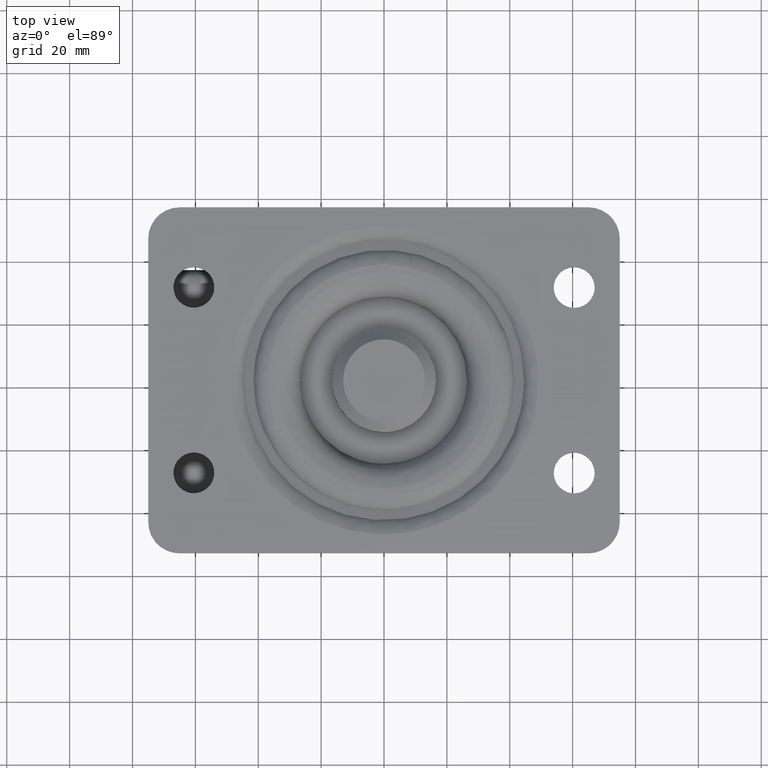
[diagram: clean part render]
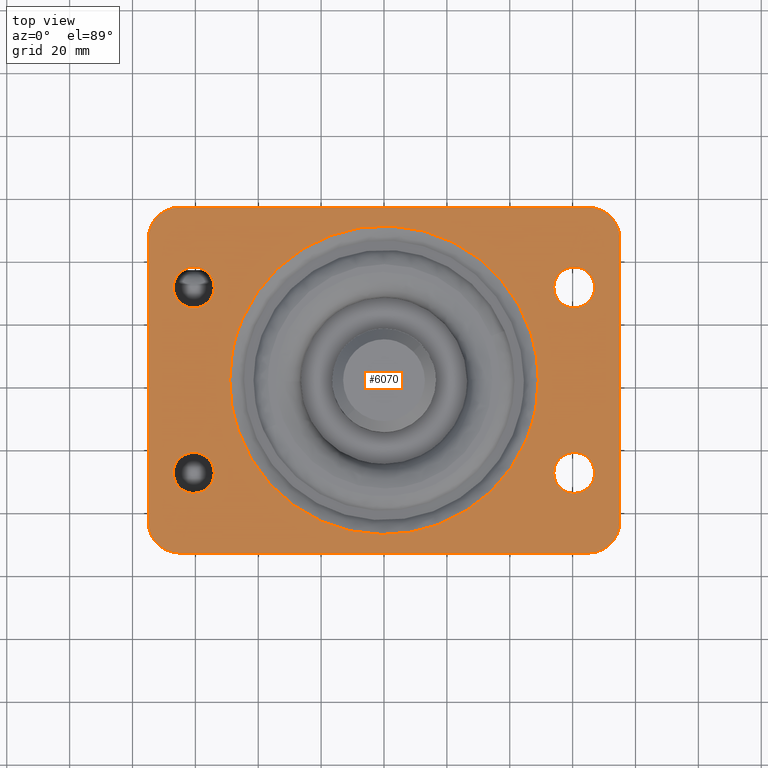
[diagram: same view with one face highlighted and labeled with its STEP entity id]
A machine part, top view. The second image highlights one B-rep face of the part: STEP entity #6070.
In plain terms, the highlighted face is a freeform B-spline surface patch.
Its self-contained STEP definition (entity closure, byte-faithful):
#3528=CARTESIAN_POINT('',(-65.214933006121370,25.025695852229020,-9.256630E-012));
#3529=VERTEX_POINT('',#3528);
#3530=CARTESIAN_POINT('',(-60.499997183516591,23.000000000000611,0.0));
#3531=VERTEX_POINT('',#3530);
#3532=CARTESIAN_POINT('',(-65.214933006121370,25.025695852229020,-9.256630E-012));
#3533=CARTESIAN_POINT('',(-64.798987766847318,24.587063081649330,-8.440023E-012));
#3534=CARTESIAN_POINT('',(-64.082386021706284,24.017365222752510,-7.033150E-012));
#3535=CARTESIAN_POINT('',(-62.850137666437618,23.402463593241091,-4.613930E-012));
#3536=CARTESIAN_POINT('',(-61.736403004759808,23.075768150316179,-2.427383E-012));
#3537=CARTESIAN_POINT('',(-60.884648617960472,22.999981815991511,-7.551697E-013));
#3538=CARTESIAN_POINT('',(-60.499997183516591,23.000000000000611,0.0));
#3539=B_SPLINE_CURVE_WITH_KNOTS('',3,(#3532,#3533,#3534,#3535,#3536,#3537,#3538),.UNSPECIFIED.,.F.,.U.,(4,1,1,1,4),(0.000000060887542,1.813386015012048,2.720040478702700,4.121328463187240,5.275295690579365),.UNSPECIFIED.);
#3540=EDGE_CURVE('',#3529,#3531,#3539,.T.);
#3542=CARTESIAN_POINT('',(-54.0,29.500000000000000,0.0));
#3543=VERTEX_POINT('',#3542);
#3544=CARTESIAN_POINT('',(-60.499997183516591,23.000000000000611,0.0));
#3545=CARTESIAN_POINT('',(-59.808631612501429,22.999576464509520,0.0));
#3546=CARTESIAN_POINT('',(-58.612385811927133,23.192797610327791,0.0));
#3547=CARTESIAN_POINT('',(-57.229036400870378,23.836764629444801,0.0));
#3548=CARTESIAN_POINT('',(-56.062134978378268,24.680098986911489,0.0));
#3549=CARTESIAN_POINT('',(-55.076966845389158,25.780478957107650,0.0));
#3550=CARTESIAN_POINT('',(-54.221787726439558,27.479528671122939,0.0));
#3551=CARTESIAN_POINT('',(-53.999470307614658,28.755446604226329,0.0));
#3552=CARTESIAN_POINT('',(-54.0,29.500000000000000,0.0));
#3553=B_SPLINE_CURVE_WITH_KNOTS('',3,(#3544,#3545,#3546,#3547,#3548,#3549,#3550,#3551,#3552),.UNSPECIFIED.,.F.,.U.,(4,1,1,1,1,1,4),(0.000000214756135,2.073952935373928,3.589546317298107,4.546771423245969,6.381366549985041,7.976754844727179,10.210238601278590),.UNSPECIFIED.);
#3554=EDGE_CURVE('',#3531,#3543,#3553,.T.);
#3556=CARTESIAN_POINT('',(-55.785066993878630,33.974304147770980,-9.256630E-012));
#3557=VERTEX_POINT('',#3556);
#3558=CARTESIAN_POINT('',(-54.0,29.500000000000000,0.0));
#3559=CARTESIAN_POINT('',(-53.999958928572859,29.911244720360180,-8.508005E-013));
#3560=CARTESIAN_POINT('',(-54.080777643549268,30.759391563772599,-2.605483E-012));
#3561=CARTESIAN_POINT('',(-54.554305979664420,32.343549784262677,-5.882856E-012));
#3562=CARTESIAN_POINT('',(-55.236022262954563,33.396713058263060,-8.061685E-012));
#3563=CARTESIAN_POINT('',(-55.785066993878630,33.974304147770980,-9.256630E-012));
#3564=B_SPLINE_CURVE_WITH_KNOTS('',3,(#3558,#3559,#3560,#3561,#3562,#3563),.UNSPECIFIED.,.F.,.U.,(4,1,1,4),(0.000000049310175,1.233736780940647,2.544550511542192,4.934946975837874),.UNSPECIFIED.);
#3565=EDGE_CURVE('',#3543,#3557,#3564,.T.);
#3637=CARTESIAN_POINT('',(-67.0,29.500000000000000,0.0));
#3638=VERTEX_POINT('',#3637);
#3639=CARTESIAN_POINT('',(-67.0,29.500000000000000,0.0));
#3640=CARTESIAN_POINT('',(-67.000045679717047,29.088754565695801,-8.508020E-013));
#3641=CARTESIAN_POINT('',(-66.919217095557769,28.240608896704860,-2.605482E-012));
#3642=CARTESIAN_POINT('',(-66.445697831384024,26.656450463665379,-5.882856E-012));
#3643=CARTESIAN_POINT('',(-65.763976478216250,25.603286337902730,-8.061686E-012));
#3644=CARTESIAN_POINT('',(-65.214933006121370,25.025695852229020,-9.256630E-012));
#3645=B_SPLINE_CURVE_WITH_KNOTS('',3,(#3639,#3640,#3641,#3642,#3643,#3644),.UNSPECIFIED.,.F.,.U.,(4,1,1,4),(0.000000049307932,1.233736780938916,2.544550511541166,4.934946975837892),.UNSPECIFIED.);
#3646=EDGE_CURVE('',#3638,#3529,#3645,.T.);
#3686=CARTESIAN_POINT('',(-60.500002816483402,35.999999999999389,0.0));
#3687=VERTEX_POINT('',#3686);
#3688=CARTESIAN_POINT('',(-55.785066993878630,33.974304147770980,-9.256630E-012));
#3689=CARTESIAN_POINT('',(-56.201000429314902,34.412939424540269,-8.440046E-012));
#3690=CARTESIAN_POINT('',(-57.091310793155422,35.120854946154743,-6.692139E-012));
#3691=CARTESIAN_POINT('',(-58.714239844482549,35.830342164519408,-3.505912E-012));
#3692=CARTESIAN_POINT('',(-59.868029809650942,36.000286824828962,-1.240726E-012));
#3693=CARTESIAN_POINT('',(-60.500002816483402,35.999999999999389,0.0));
#3694=B_SPLINE_CURVE_WITH_KNOTS('',3,(#3688,#3689,#3690,#3691,#3692,#3693),.UNSPECIFIED.,.F.,.U.,(4,1,1,4),(0.000000060879676,1.813386015008428,3.379471489652139,5.275295690579370),.UNSPECIFIED.);
#3695=EDGE_CURVE('',#3557,#3687,#3694,.T.);
#3697=CARTESIAN_POINT('',(-60.500002816483402,35.999999999999389,0.0));
#3698=CARTESIAN_POINT('',(-61.058376756352573,36.000150355949387,0.0));
#3699=CARTESIAN_POINT('',(-62.068691634116789,35.868998078532499,0.0));
#3700=CARTESIAN_POINT('',(-63.443770788600723,35.348240867511571,0.0));
#3701=CARTESIAN_POINT('',(-64.523661005261474,34.655039535979583,0.0));
#3702=CARTESIAN_POINT('',(-65.432079776155987,33.790143402994389,0.0));
#3703=CARTESIAN_POINT('',(-66.058092852496117,32.924020750144457,0.0));
#3704=CARTESIAN_POINT('',(-66.597133699605493,31.853251349144969,0.0));
#3705=CARTESIAN_POINT('',(-66.924512797990829,30.749695687567961,0.0));
#3706=CARTESIAN_POINT('',(-67.000008721854186,29.872233221505660,0.0));
#3707=CARTESIAN_POINT('',(-67.0,29.500000000000000,0.0));
#3708=B_SPLINE_CURVE_WITH_KNOTS('',3,(#3697,#3698,#3699,#3700,#3701,#3702,#3703,#3704,#3705,#3706,#3707),.UNSPECIFIED.,.F.,.U.,(4,1,1,1,1,1,1,1,4),(0.000000214806230,1.675103373865545,3.031169577022228,4.387254582914811,5.503944866911466,6.780219901310039,7.577910567241601,9.093518363874459,10.210238601278380),.UNSPECIFIED.);
#3709=EDGE_CURVE('',#3687,#3638,#3708,.T.);
#3732=CARTESIAN_POINT('',(-65.214933006121356,-33.974304147770980,-9.256644E-012));
#3733=VERTEX_POINT('',#3732);
#3734=CARTESIAN_POINT('',(-60.499997183516591,-35.999999999999403,0.0));
#3735=VERTEX_POINT('',#3734);
#3736=CARTESIAN_POINT('',(-65.214933006121356,-33.974304147770980,-9.256644E-012));
#3737=CARTESIAN_POINT('',(-64.874568315949617,-34.333117994694831,-8.588420E-012));
#3738=CARTESIAN_POINT('',(-64.153788166633973,-34.936884794937889,-7.173341E-012));
#3739=CARTESIAN_POINT('',(-63.003599113412392,-35.538435920651949,-4.915222E-012));
#3740=CARTESIAN_POINT('',(-61.791314648492779,-35.910756592436712,-2.535192E-012));
#3741=CARTESIAN_POINT('',(-60.967083881309300,-36.000076235908139,-9.170127E-013));
#3742=CARTESIAN_POINT('',(-60.499997183516591,-35.999999999999403,0.0));
#3743=B_SPLINE_CURVE_WITH_KNOTS('',3,(#3736,#3737,#3738,#3739,#3740,#3741,#3742),.UNSPECIFIED.,.F.,.U.,(4,1,1,1,4),(0.000000060886622,1.483680648341079,2.802480864486630,3.874044127274264,5.275295690579337),.UNSPECIFIED.);
#3744=EDGE_CURVE('',#3733,#3735,#3743,.T.);
#3746=CARTESIAN_POINT('',(-54.0,-29.500000000000000,0.0));
#3747=VERTEX_POINT('',#3746);
#3748=CARTESIAN_POINT('',(-60.499997183516591,-35.999999999999403,0.0));
#3749=CARTESIAN_POINT('',(-59.702203654264608,-36.000749376513703,0.0));
#3750=CARTESIAN_POINT('',(-58.453077044249852,-35.766921717668019,0.0));
#3751=CARTESIAN_POINT('',(-57.048628630915793,-35.048907788914804,0.0));
#3752=CARTESIAN_POINT('',(-56.030112461482481,-34.274072695274100,0.0));
#3753=CARTESIAN_POINT('',(-55.173069512090997,-33.316706567218390,0.0));
#3754=CARTESIAN_POINT('',(-54.456132613106782,-32.032933674351661,0.0));
#3755=CARTESIAN_POINT('',(-54.075495372875757,-30.749682840480119,0.0));
#3756=CARTESIAN_POINT('',(-53.999989729297987,-29.872235501302921,0.0));
#3757=CARTESIAN_POINT('',(-54.0,-29.500000000000000,0.0));
#3758=B_SPLINE_CURVE_WITH_KNOTS('',3,(#3748,#3749,#3750,#3751,#3752,#3753,#3754,#3755,#3756,#3757),.UNSPECIFIED.,.F.,.U.,(4,1,1,1,1,1,1,4),(0.000000214770303,2.393021276081775,3.749081627747875,4.706292911014352,6.221839639303230,7.577910567233488,9.093518363870889,10.210238601278389),.UNSPECIFIED.);
#3759=EDGE_CURVE('',#3735,#3747,#3758,.T.);
#3761=CARTESIAN_POINT('',(-55.785066993878630,-25.025695852229020,-9.256644E-012));
#3762=VERTEX_POINT('',#3761);
#3763=CARTESIAN_POINT('',(-54.0,-29.500000000000000,0.0));
#3764=CARTESIAN_POINT('',(-53.999793996208382,-28.908809776998680,-1.223081E-012));
#3765=CARTESIAN_POINT('',(-54.127154656044247,-27.983654075862251,-3.137085E-012));
#3766=CARTESIAN_POINT('',(-54.692797121177122,-26.433728172377169,-6.343643E-012));
#3767=CARTESIAN_POINT('',(-55.289239249665577,-25.547442923245310,-8.177230E-012));
#3768=CARTESIAN_POINT('',(-55.785066993878630,-25.025695852229020,-9.256644E-012));
#3769=B_SPLINE_CURVE_WITH_KNOTS('',3,(#3763,#3764,#3765,#3766,#3767,#3768),.UNSPECIFIED.,.F.,.U.,(4,1,1,4),(0.000000049308217,1.773500383713782,2.775888426982784,4.934946975837912),.UNSPECIFIED.);
#3770=EDGE_CURVE('',#3747,#3762,#3769,.T.);
#3843=CARTESIAN_POINT('',(-67.0,-29.500000000000000,0.0));
#3844=VERTEX_POINT('',#3843);
#3845=CARTESIAN_POINT('',(-67.0,-29.500000000000000,0.0));
#3846=CARTESIAN_POINT('',(-67.000672760634785,-30.271199484763759,-1.595493E-012));
#3847=CARTESIAN_POINT('',(-66.791626826169960,-31.427332342342378,-3.987353E-012));
#3848=CARTESIAN_POINT('',(-66.080821080387892,-32.918074150283481,-7.071467E-012));
#3849=CARTESIAN_POINT('',(-65.551159773948413,-33.620121916693492,-8.523896E-012));
#3850=CARTESIAN_POINT('',(-65.214933006121356,-33.974304147770980,-9.256644E-012));
#3851=B_SPLINE_CURVE_WITH_KNOTS('',3,(#3845,#3846,#3847,#3848,#3849,#3850),.UNSPECIFIED.,.F.,.U.,(4,1,1,4),(0.000000049300406,2.313269577827303,3.469879384539595,4.934946975837923),.UNSPECIFIED.);
#3852=EDGE_CURVE('',#3844,#3733,#3851,.T.);
#3890=CARTESIAN_POINT('',(-60.500002816483402,-23.000000000000611,0.0));
#3891=VERTEX_POINT('',#3890);
#3892=CARTESIAN_POINT('',(-55.785066993878630,-25.025695852229020,-9.256644E-012));
#3893=CARTESIAN_POINT('',(-56.106535003669222,-24.686834912829760,-8.625519E-012));
#3894=CARTESIAN_POINT('',(-56.801866791366727,-24.096773521224730,-7.260402E-012));
#3895=CARTESIAN_POINT('',(-57.822794802940770,-23.546245684277370,-5.256055E-012));
#3896=CARTESIAN_POINT('',(-59.043910459461628,-23.119717921388659,-2.858688E-012));
#3897=CARTESIAN_POINT('',(-59.895507257361892,-22.999744376712581,-1.186782E-012));
#3898=CARTESIAN_POINT('',(-60.500002816483402,-23.000000000000611,0.0));
#3899=B_SPLINE_CURVE_WITH_KNOTS('',3,(#3892,#3893,#3894,#3895,#3896,#3897,#3898),.UNSPECIFIED.,.F.,.U.,(4,1,1,1,4),(0.000000060885536,1.401251624174429,2.720040478702725,3.461909736473141,5.275295690579346),.UNSPECIFIED.);
#3900=EDGE_CURVE('',#3762,#3891,#3899,.T.);
#3902=CARTESIAN_POINT('',(-60.500002816483402,-23.000000000000611,0.0));
#3903=CARTESIAN_POINT('',(-61.191368490933513,-22.999601613722739,0.0));
#3904=CARTESIAN_POINT('',(-62.334424859873167,-23.184226891892560,0.0));
#3905=CARTESIAN_POINT('',(-63.943153279153712,-23.909087888294749,0.0));
#3906=CARTESIAN_POINT('',(-65.144074846542878,-24.858153419576919,0.0));
#3907=CARTESIAN_POINT('',(-66.074058210406136,-26.065344013287021,0.0));
#3908=CARTESIAN_POINT('',(-66.792120528152765,-27.559307012993759,0.0));
#3909=CARTESIAN_POINT('',(-67.000486703484938,-28.755435914834649,0.0));
#3910=CARTESIAN_POINT('',(-67.0,-29.500000000000000,0.0));
#3911=B_SPLINE_CURVE_WITH_KNOTS('',3,(#3902,#3903,#3904,#3905,#3906,#3907,#3908,#3909,#3910),.UNSPECIFIED.,.F.,.U.,(4,1,1,1,1,1,4),(0.000000214811307,2.073952935416530,3.430020038061564,5.264615511083531,6.620694273557589,7.976754844739224,10.210238601278370),.UNSPECIFIED.);
#3912=EDGE_CURVE('',#3891,#3844,#3911,.T.);
#3935=CARTESIAN_POINT('',(55.785066993878630,-33.974304147770980,-9.256630E-012));
#3936=VERTEX_POINT('',#3935);
#3937=CARTESIAN_POINT('',(60.500002816483402,-35.999999999999389,0.0));
#3938=VERTEX_POINT('',#3937);
#3939=CARTESIAN_POINT('',(55.785066993878630,-33.974304147770980,-9.256630E-012));
#3940=CARTESIAN_POINT('',(56.219898159832489,-34.432898755439581,-8.402945E-012));
#3941=CARTESIAN_POINT('',(57.137346703339063,-35.152885319939173,-6.601758E-012));
#3942=CARTESIAN_POINT('',(58.769171645991783,-35.841739373991658,-3.398067E-012));
#3943=CARTESIAN_POINT('',(59.895522099217217,-36.000194481392427,-1.186751E-012));
#3944=CARTESIAN_POINT('',(60.500002816483402,-35.999999999999389,0.0));
#3945=B_SPLINE_CURVE_WITH_KNOTS('',3,(#3939,#3940,#3941,#3942,#3943,#3944),.UNSPECIFIED.,.F.,.U.,(4,1,1,4),(0.000000060882591,1.895824261736556,3.461909736472969,5.275295690579372),.UNSPECIFIED.);
#3946=EDGE_CURVE('',#3936,#3938,#3945,.T.);
#3948=CARTESIAN_POINT('',(67.0,-29.500000000000000,0.0));
#3949=VERTEX_POINT('',#3948);
#3950=CARTESIAN_POINT('',(60.500002816483402,-35.999999999999389,0.0));
#3951=CARTESIAN_POINT('',(60.925410490539448,-36.000024183923287,0.0));
#3952=CARTESIAN_POINT('',(61.935832327112813,-35.900601644085093,0.0));
#3953=CARTESIAN_POINT('',(63.331309787752780,-35.420563325410001,0.0));
#3954=CARTESIAN_POINT('',(64.613651498831118,-34.597292504549607,0.0));
#3955=CARTESIAN_POINT('',(65.692019443904599,-33.519159854368283,0.0));
#3956=CARTESIAN_POINT('',(66.450644599490218,-32.253354001419673,0.0));
#3957=CARTESIAN_POINT('',(66.902641727952414,-30.855993467874150,0.0));
#3958=CARTESIAN_POINT('',(67.000080108327822,-29.978595580998689,0.0));
#3959=CARTESIAN_POINT('',(67.0,-29.500000000000000,0.0));
#3960=B_SPLINE_CURVE_WITH_KNOTS('',3,(#3950,#3951,#3952,#3953,#3954,#3955,#3956,#3957,#3958,#3959),.UNSPECIFIED.,.F.,.U.,(4,1,1,1,1,1,1,4),(0.000000214823888,1.276250073671632,3.031169577031194,4.387254582920274,5.822984863437279,7.577910567243150,8.774456107231579,10.210238601278361),.UNSPECIFIED.);
#3961=EDGE_CURVE('',#3938,#3949,#3960,.T.);
#3963=CARTESIAN_POINT('',(65.214933006121370,-25.025695852229010,-9.256630E-012));
#3964=VERTEX_POINT('',#3963);
#3965=CARTESIAN_POINT('',(67.0,-29.500000000000000,0.0));
#3966=CARTESIAN_POINT('',(67.000092845111340,-29.011638611429490,-1.010343E-012));
#3967=CARTESIAN_POINT('',(66.895227091654789,-28.086395149739278,-2.924526E-012));
#3968=CARTESIAN_POINT('',(66.365448459672464,-26.520189541980269,-6.164758E-012));
#3969=CARTESIAN_POINT('',(65.710749078563580,-25.547442719559271,-8.177218E-012));
#3970=CARTESIAN_POINT('',(65.214933006121370,-25.025695852229010,-9.256630E-012));
#3971=B_SPLINE_CURVE_WITH_KNOTS('',3,(#3965,#3966,#3967,#3968,#3969,#3970),.UNSPECIFIED.,.F.,.U.,(4,1,1,4),(0.000000049306982,1.465067640670358,2.775888426983252,4.934946975837899),.UNSPECIFIED.);
#3972=EDGE_CURVE('',#3949,#3964,#3971,.T.);
#4044=CARTESIAN_POINT('',(54.0,-29.500000000000000,0.0));
#4045=VERTEX_POINT('',#4044);
#4046=CARTESIAN_POINT('',(54.0,-29.500000000000000,0.0));
#4047=CARTESIAN_POINT('',(53.999958928572859,-29.911244720360180,-8.508005E-013));
#4048=CARTESIAN_POINT('',(54.080777643549268,-30.759391563772599,-2.605483E-012));
#4049=CARTESIAN_POINT('',(54.554305979664420,-32.343549784262677,-5.882856E-012));
#4050=CARTESIAN_POINT('',(55.236022262954563,-33.396713058263060,-8.061685E-012));
#4051=CARTESIAN_POINT('',(55.785066993878630,-33.974304147770980,-9.256630E-012));
#4052=B_SPLINE_CURVE_WITH_KNOTS('',3,(#4046,#4047,#4048,#4049,#4050,#4051),.UNSPECIFIED.,.F.,.U.,(4,1,1,4),(0.000000049310175,1.233736780940647,2.544550511542192,4.934946975837874),.UNSPECIFIED.);
#4053=EDGE_CURVE('',#4045,#3936,#4052,.T.);
#4092=CARTESIAN_POINT('',(60.499997183516619,-23.000000000000611,0.0));
#4093=VERTEX_POINT('',#4092);
#4094=CARTESIAN_POINT('',(65.214933006121370,-25.025695852229010,-9.256630E-012));
#4095=CARTESIAN_POINT('',(64.685722430140430,-24.467177694514451,-8.217654E-012));
#4096=CARTESIAN_POINT('',(63.740885760816163,-23.773583216056970,-6.362697E-012));
#4097=CARTESIAN_POINT('',(62.093425624836513,-23.139057515804041,-3.128310E-012));
#4098=CARTESIAN_POINT('',(61.104484098778393,-22.999755049016059,-1.186763E-012));
#4099=CARTESIAN_POINT('',(60.499997183516619,-23.000000000000611,0.0));
#4100=B_SPLINE_CURVE_WITH_KNOTS('',3,(#4094,#4095,#4096,#4097,#4098,#4099),.UNSPECIFIED.,.F.,.U.,(4,1,1,4),(0.000000060884381,2.307968320717590,3.461909736473106,5.275295690579344),.UNSPECIFIED.);
#4101=EDGE_CURVE('',#3964,#4093,#4100,.T.);
#4103=CARTESIAN_POINT('',(60.499997183516619,-23.000000000000611,0.0));
#4104=CARTESIAN_POINT('',(59.941618022612992,-22.999854021751378,0.0));
#4105=CARTESIAN_POINT('',(59.037681235681397,-23.117232388918531,0.0));
#4106=CARTESIAN_POINT('',(57.653325364977782,-23.602948749693500,0.0));
#4107=CARTESIAN_POINT('',(56.416106883241461,-24.354777397877811,0.0));
#4108=CARTESIAN_POINT('',(55.218628643486021,-25.581928026183210,0.0));
#4109=CARTESIAN_POINT('',(54.262818743295412,-27.293510577959921,0.0));
#4110=CARTESIAN_POINT('',(53.999282904027730,-28.702238290381722,0.0));
#4111=CARTESIAN_POINT('',(54.0,-29.500000000000000,0.0));
#4112=B_SPLINE_CURVE_WITH_KNOTS('',3,(#4103,#4104,#4105,#4106,#4107,#4108,#4109,#4110,#4111),.UNSPECIFIED.,.F.,.U.,(4,1,1,1,1,1,4),(0.000000214749507,1.675103373817194,2.712099067918730,4.387254582882074,5.982514839087045,7.817217944726681,10.210238601278609),.UNSPECIFIED.);
#4113=EDGE_CURVE('',#4093,#4045,#4112,.T.);
#4136=CARTESIAN_POINT('',(55.785066993878637,25.025695852229010,-9.256630E-012));
#4137=VERTEX_POINT('',#4136);
#4138=CARTESIAN_POINT('',(60.500002816483402,23.000000000000611,0.0));
#4139=VERTEX_POINT('',#4138);
#4140=CARTESIAN_POINT('',(55.785066993878637,25.025695852229010,-9.256630E-012));
#4141=CARTESIAN_POINT('',(56.163223747855596,24.626980229866259,-8.514212E-012));
#4142=CARTESIAN_POINT('',(56.957131537604717,23.979042251489261,-6.955567E-012));
#4143=CARTESIAN_POINT('',(58.549555107637786,23.209272463522741,-3.829230E-012));
#4144=CARTESIAN_POINT('',(59.758097254646337,22.999517176191070,-1.456551E-012));
#4145=CARTESIAN_POINT('',(60.500002816483402,23.000000000000611,0.0));
#4146=B_SPLINE_CURVE_WITH_KNOTS('',3,(#4140,#4141,#4142,#4143,#4144,#4145),.UNSPECIFIED.,.F.,.U.,(4,1,1,4),(0.000000060886295,1.648533886200621,3.049778223737139,5.275295690579361),.UNSPECIFIED.);
#4147=EDGE_CURVE('',#4137,#4139,#4146,.T.);
#4149=CARTESIAN_POINT('',(67.0,29.500000000000000,0.0));
#4150=VERTEX_POINT('',#4149);
#4151=CARTESIAN_POINT('',(60.500002816483402,23.000000000000611,0.0));
#4152=CARTESIAN_POINT('',(61.244583117417207,22.999444943007418,0.0));
#4153=CARTESIAN_POINT('',(62.334355821464143,23.189410344445150,0.0));
#4154=CARTESIAN_POINT('',(63.623201396998297,23.770428440802881,0.0));
#4155=CARTESIAN_POINT('',(64.628946821359378,24.424558198634109,0.0));
#4156=CARTESIAN_POINT('',(65.568457935775058,25.341306111498639,0.0));
#4157=CARTESIAN_POINT('',(66.304877750254306,26.488748359290479,0.0));
#4158=CARTESIAN_POINT('',(66.849961882241629,27.851632537626418,0.0));
#4159=CARTESIAN_POINT('',(67.000263812797868,28.861829031734370,0.0));
#4160=CARTESIAN_POINT('',(67.0,29.500000000000000,0.0));
#4161=B_SPLINE_CURVE_WITH_KNOTS('',3,(#4151,#4152,#4153,#4154,#4155,#4156,#4157,#4158,#4159,#4160),.UNSPECIFIED.,.F.,.U.,(4,1,1,1,1,1,1,4),(0.000000214804929,2.233484872761211,3.270486711174886,4.227724074456822,5.822984863435053,7.179070366667428,8.295824214536898,10.210238601278370),.UNSPECIFIED.);
#4162=EDGE_CURVE('',#4139,#4150,#4161,.T.);
#4164=CARTESIAN_POINT('',(65.214933006121370,33.974304147770980,-9.256103E-012));
#4165=VERTEX_POINT('',#4164);
#4166=CARTESIAN_POINT('',(67.0,29.500000000000000,0.0));
#4167=CARTESIAN_POINT('',(67.000628769098938,30.271189901734321,-1.595379E-012));
#4168=CARTESIAN_POINT('',(66.791670098127412,31.427343759360578,-3.987143E-012));
#4169=CARTESIAN_POINT('',(66.080799471524330,32.918065800310892,-7.071037E-012));
#4170=CARTESIAN_POINT('',(65.551168726018091,33.620127513442817,-8.523409E-012));
#4171=CARTESIAN_POINT('',(65.214933006121370,33.974304147770980,-9.256103E-012));
#4172=B_SPLINE_CURVE_WITH_KNOTS('',3,(#4166,#4167,#4168,#4169,#4170,#4171),.UNSPECIFIED.,.F.,.U.,(4,1,1,4),(0.000000049309173,2.313269577829438,3.469879384539226,4.934946975837912),.UNSPECIFIED.);
#4173=EDGE_CURVE('',#4150,#4165,#4172,.T.);
#4246=CARTESIAN_POINT('',(54.0,29.500000000000000,0.0));
#4247=VERTEX_POINT('',#4246);
#4248=CARTESIAN_POINT('',(54.0,29.500000000000000,0.0));
#4249=CARTESIAN_POINT('',(53.999511055651837,28.780232325422791,-1.489086E-012));
#4250=CARTESIAN_POINT('',(54.163913949914011,27.803872453914980,-3.509021E-012));
#4251=CARTESIAN_POINT('',(54.792721428399872,26.280633666896090,-6.660362E-012));
#4252=CARTESIAN_POINT('',(55.324735983244118,25.510226777337000,-8.254212E-012));
#4253=CARTESIAN_POINT('',(55.785066993878637,25.025695852229010,-9.256630E-012));
#4254=B_SPLINE_CURVE_WITH_KNOTS('',3,(#4248,#4249,#4250,#4251,#4252,#4253),.UNSPECIFIED.,.F.,.U.,(4,1,1,4),(0.000000049311816,2.159058598247204,2.930104702001849,4.934946975837865),.UNSPECIFIED.);
#4255=EDGE_CURVE('',#4247,#4137,#4254,.T.);
#4294=CARTESIAN_POINT('',(60.499997183516612,35.999999999999389,0.0));
#4295=VERTEX_POINT('',#4294);
#4296=CARTESIAN_POINT('',(65.214933006121370,33.974304147770980,-9.256103E-012));
#4297=CARTESIAN_POINT('',(64.685753995051968,34.532824968373937,-8.217248E-012));
#4298=CARTESIAN_POINT('',(63.628386232510913,35.309075079276752,-6.141482E-012));
#4299=CARTESIAN_POINT('',(61.956160321153646,35.892965412695332,-2.858660E-012));
#4300=CARTESIAN_POINT('',(60.967080477410491,36.000063879135539,-9.169524E-013));
#4301=CARTESIAN_POINT('',(60.499997183516612,35.999999999999389,0.0));
#4302=B_SPLINE_CURVE_WITH_KNOTS('',3,(#4296,#4297,#4298,#4299,#4300,#4301),.UNSPECIFIED.,.F.,.U.,(4,1,1,4),(0.000000060883932,2.307968320717872,3.874044127273340,5.275295690579343),.UNSPECIFIED.);
#4303=EDGE_CURVE('',#4165,#4295,#4302,.T.);
#4305=CARTESIAN_POINT('',(60.499997183516612,35.999999999999389,0.0));
#4306=CARTESIAN_POINT('',(60.021404036134570,36.000066117664687,0.0));
#4307=CARTESIAN_POINT('',(59.011032603082377,35.887959201476427,0.0));
#4308=CARTESIAN_POINT('',(57.699389784684421,35.418718469390143,0.0));
#4309=CARTESIAN_POINT('',(56.677009397370803,34.788556341402582,0.0));
#4310=CARTESIAN_POINT('',(55.865591494394003,34.097259863320133,0.0));
#4311=CARTESIAN_POINT('',(55.068932252595943,33.162367853254743,0.0));
#4312=CARTESIAN_POINT('',(54.247985153021453,31.626680221483870,0.0));
#4313=CARTESIAN_POINT('',(53.999254429007777,30.297785875713810,0.0));
#4314=CARTESIAN_POINT('',(54.0,29.500000000000000,0.0));
#4315=B_SPLINE_CURVE_WITH_KNOTS('',3,(#4305,#4306,#4307,#4308,#4309,#4310,#4311,#4312,#4313,#4314),.UNSPECIFIED.,.F.,.U.,(4,1,1,1,1,1,1,4),(0.000000214782341,1.435783455143945,3.031169577005032,4.147916781198700,5.025416912486168,6.221839639305852,7.817217944733237,10.210238601278400),.UNSPECIFIED.);
#4316=EDGE_CURVE('',#4295,#4247,#4315,.T.);
#5622=CARTESIAN_POINT('',(-45.167351141408560,19.209628408763130,-9.222988E-016));
#5623=VERTEX_POINT('',#5622);
#5635=CARTESIAN_POINT('',(-49.082577694955901,0.0,0.0));
#5636=VERTEX_POINT('',#5635);
#5637=CARTESIAN_POINT('',(-49.082577694955901,0.0,0.0));
#5638=CARTESIAN_POINT('',(-49.082696961143682,2.364370340105109,-1.089902E-016));
#5639=CARTESIAN_POINT('',(-48.762566433441897,6.784664442166761,-3.157620E-016));
#5640=CARTESIAN_POINT('',(-47.405471610806941,13.235552350016070,-6.258815E-016));
#5641=CARTESIAN_POINT('',(-46.012313267820950,17.223092844893689,-8.227859E-016));
#5642=CARTESIAN_POINT('',(-45.167351141408560,19.209628408763130,-9.222988E-016));
#5643=B_SPLINE_CURVE_WITH_KNOTS('',3,(#5637,#5638,#5639,#5640,#5641,#5642),.UNSPECIFIED.,.F.,.U.,(4,1,1,4),(5.102436E-009,7.093101927146316,13.261002458820149,19.737308050132530),.UNSPECIFIED.);
#5644=EDGE_CURVE('',#5636,#5623,#5643,.T.);
#5646=CARTESIAN_POINT('',(45.167351141408567,-19.209628408763130,-8.608122E-016));
#5647=VERTEX_POINT('',#5646);
#5648=CARTESIAN_POINT('',(45.167351141408567,-19.209628408763130,-8.608122E-016));
#5649=CARTESIAN_POINT('',(43.729102285230731,-22.593338774294129,-8.542477E-016));
#5650=CARTESIAN_POINT('',(40.606838948773280,-28.114234628888251,-8.367359E-016));
#5651=CARTESIAN_POINT('',(35.243903940142097,-34.390193109444439,-8.009250E-016));
#5652=CARTESIAN_POINT('',(30.581823577444769,-38.516838691643301,-7.674185E-016));
#5653=CARTESIAN_POINT('',(25.713223807132689,-41.955264795910800,-7.308710E-016));
#5654=CARTESIAN_POINT('',(19.756208661813069,-45.146863714561782,-6.843381E-016));
#5655=CARTESIAN_POINT('',(12.460158892787790,-47.700461768240132,-6.249228E-016));
#5656=CARTESIAN_POINT('',(4.847831224699167,-49.034295280828331,-5.605541E-016));
#5657=CARTESIAN_POINT('',(-2.961781591917449,-49.198243186253990,-4.923645E-016));
#5658=CARTESIAN_POINT('',(-10.534135141362951,-48.155489192121621,-4.240987E-016));
#5659=CARTESIAN_POINT('',(-16.912902049980769,-46.200423065221493,-3.646689E-016));
#5660=CARTESIAN_POINT('',(-22.445258710035581,-43.762388855887501,-3.117982E-016));
#5661=CARTESIAN_POINT('',(-27.228845682103358,-40.993152988121707,-2.649014E-016));
#5662=CARTESIAN_POINT('',(-31.694883619529140,-37.594393011741481,-2.196642E-016));
#5663=CARTESIAN_POINT('',(-35.588415271583500,-33.931862801745822,-1.789758E-016));
#5664=CARTESIAN_POINT('',(-38.738121167636123,-30.279364702006909,-1.448280E-016));
#5665=CARTESIAN_POINT('',(-41.799818579165688,-25.898392314759860,-1.101500E-016));
#5666=CARTESIAN_POINT('',(-44.136228970022692,-21.678213127709039,-8.211934E-017));
#5667=CARTESIAN_POINT('',(-46.189695396431873,-16.838663992020841,-5.546290E-017));
#5668=CARTESIAN_POINT('',(-47.677615026716524,-12.067663348578071,-3.388826E-017));
#5669=CARTESIAN_POINT('',(-48.801961324399983,-6.302756528285499,-1.372543E-017));
#5670=CARTESIAN_POINT('',(-49.082687620570887,-2.275994170117600,-4.066841E-018));
#5671=CARTESIAN_POINT('',(-49.082577694955901,0.0,0.0));
#5672=B_SPLINE_CURVE_WITH_KNOTS('',3,(#5648,#5649,#5650,#5651,#5652,#5653,#5654,#5655,#5656,#5657,#5658,#5659,#5660,#5661,#5662,#5663,#5664,#5665,#5666,#5667,#5668,#5669,#5670,#5671),.UNSPECIFIED.,.F.,.U.,(4,1,1,1,1,1,1,1,1,1,1,1,1,1,1,1,1,1,1,1,1,4),(0.000000184482388,11.029882414253310,18.908478180877822,24.686075807805299,29.675819580570789,36.766517653197752,44.907697933246062,52.786262643450002,59.876889627868472,68.280641107035748,75.633858932662093,79.835812663614192,86.401234621870074,92.178842767023554,96.643376783828074,102.420973449716500,106.622859198827700,112.663091918662000,116.864958671855800,122.379958244899700,127.632376733533700,134.460350305277300),.UNSPECIFIED.);
#5673=EDGE_CURVE('',#5647,#5636,#5672,.T.);
#5720=CARTESIAN_POINT('',(49.082577694955901,0.0,0.0));
#5721=VERTEX_POINT('',#5720);
#5722=CARTESIAN_POINT('',(49.082577694955901,0.0,0.0));
#5723=CARTESIAN_POINT('',(49.082638169597217,-2.158764971117098,-9.287867E-017));
#5724=CARTESIAN_POINT('',(48.790567777892022,-6.579092123426577,-2.856210E-016));
#5725=CARTESIAN_POINT('',(47.473455350427407,-13.041038940445761,-5.751911E-016));
#5726=CARTESIAN_POINT('',(46.012307628734412,-17.223092345482119,-7.679336E-016));
#5727=CARTESIAN_POINT('',(45.167351141408567,-19.209628408763130,-8.608122E-016));
#5728=B_SPLINE_CURVE_WITH_KNOTS('',3,(#5722,#5723,#5724,#5725,#5726,#5727),.UNSPECIFIED.,.F.,.U.,(4,1,1,4),(5.102006E-009,6.476305596414209,13.261002458820039,19.737308050132540),.UNSPECIFIED.);
#5729=EDGE_CURVE('',#5721,#5647,#5728,.T.);
#5731=CARTESIAN_POINT('',(-45.167351141408560,19.209628408763130,-9.222988E-016));
#5732=CARTESIAN_POINT('',(-44.276683972900138,21.304124473573079,-9.179414E-016));
#5733=CARTESIAN_POINT('',(-42.322753561522028,25.134308399885210,-9.069180E-016));
#5734=CARTESIAN_POINT('',(-38.494267762096349,30.697539786614389,-8.816011E-016));
#5735=CARTESIAN_POINT('',(-34.472655164570710,35.108918694071853,-8.522640E-016));
#5736=CARTESIAN_POINT('',(-30.024688523498781,38.941253032703067,-8.178123E-016));
#5737=CARTESIAN_POINT('',(-25.270573121948988,42.242001797270603,-7.794663E-016));
#5738=CARTESIAN_POINT('',(-19.497094538378750,45.216874491280812,-7.309190E-016));
#5739=CARTESIAN_POINT('',(-12.872277438066771,47.535459080461180,-6.731162E-016));
#5740=CARTESIAN_POINT('',(-6.671386313588193,48.759425659825112,-6.172003E-016));
#5741=CARTESIAN_POINT('',(-1.075022944124237,49.146821281998747,-5.653622E-016));
#5742=CARTESIAN_POINT('',(3.918048526182831,49.011135759063933,-5.181906E-016));
#5743=CARTESIAN_POINT('',(9.482879523884330,48.290304933939019,-4.645266E-016));
#5744=CARTESIAN_POINT('',(15.852142392786810,46.633033356877732,-4.015114E-016));
#5745=CARTESIAN_POINT('',(21.676011888216710,44.177276140111822,-3.420913E-016));
#5746=CARTESIAN_POINT('',(27.221507207191191,40.986758313733823,-2.838797E-016));
#5747=CARTESIAN_POINT('',(31.648357738990441,37.673643709937927,-2.359434E-016));
#5748=CARTESIAN_POINT('',(35.766204003239913,33.737209287018104,-1.897167E-016));
#5749=CARTESIAN_POINT('',(38.838492116190046,30.135721714984800,-1.539548E-016));
#5750=CARTESIAN_POINT('',(41.799821306340860,25.898395050568830,-1.180178E-016));
#5751=CARTESIAN_POINT('',(44.221204452671842,21.524736908489611,-8.689274E-017));
#5752=CARTESIAN_POINT('',(46.181610801153319,16.834786267921949,-5.949307E-017));
#5753=CARTESIAN_POINT('',(47.773152630218952,11.731765605044430,-3.476802E-017));
#5754=CARTESIAN_POINT('',(48.835019111166410,6.127689304099452,-1.405998E-017));
#5755=CARTESIAN_POINT('',(49.082615378248363,1.925831649765881,-3.687473E-018));
#5756=CARTESIAN_POINT('',(49.082577694955901,0.0,0.0));
#5757=B_SPLINE_CURVE_WITH_KNOTS('',3,(#5731,#5732,#5733,#5734,#5735,#5736,#5737,#5738,#5739,#5740,#5741,#5742,#5743,#5744,#5745,#5746,#5747,#5748,#5749,#5750,#5751,#5752,#5753,#5754,#5755,#5756),.UNSPECIFIED.,.F.,.U.,(4,1,1,1,1,1,1,1,1,1,1,1,1,1,1,1,1,1,1,1,1,1,1,4),(0.000000184485003,6.828006954988283,12.868243686860129,20.221529012674569,24.686075807803409,30.463671957181209,37.554374528625189,44.119844835628172,51.473128294160503,56.462924129610393,60.927361298386387,66.442410879993517,73.270365344408916,80.623675746787796,85.350749655710445,92.441485449278503,97.168600606752108,102.420973449716700,106.622859198828000,112.663091918662400,117.390250723873390,121.854769806536500,128.682847601840900,134.460350305277390),.UNSPECIFIED.);
#5758=EDGE_CURVE('',#5623,#5721,#5757,.T.);
#5935=CARTESIAN_POINT('',(-82.492499709270902,60.494499786798663,0.0));
#5936=CARTESIAN_POINT('',(82.492503732584410,60.494499786798663,0.0));
#5937=CARTESIAN_POINT('',(-82.492499709270902,-60.494502737228572,0.0));
#5938=CARTESIAN_POINT('',(82.492503732584410,-60.494502737228572,0.0));
#5939=B_SPLINE_SURFACE_WITH_KNOTS('',1,1,((#5935,#5937),(#5936,#5938)),.UNSPECIFIED.,.F.,.F.,.U.,(2,2),(2,2),(0.0,164.985003441855300),(0.0,120.989002524027200),.UNSPECIFIED.);
#5940=CARTESIAN_POINT('',(65.0,55.0,0.0));
#5941=VERTEX_POINT('',#5940);
#5942=CARTESIAN_POINT('',(-65.0,55.0,0.0));
#5943=VERTEX_POINT('',#5942);
#5944=CARTESIAN_POINT('',(65.0,55.0,0.0));
#5945=CARTESIAN_POINT('',(-65.0,55.0,0.0));
#5946=QUASI_UNIFORM_CURVE('',1,(#5944,#5945),.UNSPECIFIED.,.F.,.U.);
#5947=EDGE_CURVE('',#5941,#5943,#5946,.T.);
#5948=ORIENTED_EDGE('',*,*,#5947,.T.);
#5949=CARTESIAN_POINT('',(-75.0,45.0,0.0));
#5950=VERTEX_POINT('',#5949);
#5951=CARTESIAN_POINT('',(-65.0,55.0,0.0));
#5952=CARTESIAN_POINT('',(-65.940877154695059,55.000331841205373,0.0));
#5953=CARTESIAN_POINT('',(-67.454184766222511,54.784772684063960,0.0));
#5954=CARTESIAN_POINT('',(-69.484392151382124,54.001492648750521,0.0));
#5955=CARTESIAN_POINT('',(-71.304277808550609,52.880476825756602,0.0));
#5956=CARTESIAN_POINT('',(-72.909651608265051,51.275060531913311,0.0));
#5957=CARTESIAN_POINT('',(-73.998852723278219,49.482391563095781,0.0));
#5958=CARTESIAN_POINT('',(-74.781258178486027,47.454126763549461,0.0));
#5959=CARTESIAN_POINT('',(-75.000495480461879,45.981814743523707,0.0));
#5960=CARTESIAN_POINT('',(-75.0,45.0,0.0));
#5961=B_SPLINE_CURVE_WITH_KNOTS('',3,(#5951,#5952,#5953,#5954,#5955,#5956,#5957,#5958,#5959,#5960),.UNSPECIFIED.,.F.,.U.,(4,1,1,1,1,1,1,4),(0.000000175526793,2.822522162588980,4.540623595662067,6.504127775349106,9.203938896875945,11.290164762717090,12.762816120442650,15.708061828758961),.UNSPECIFIED.);
#5962=EDGE_CURVE('',#5943,#5950,#5961,.T.);
#5963=ORIENTED_EDGE('',*,*,#5962,.T.);
#5964=CARTESIAN_POINT('',(-75.0,-45.0,0.0));
#5965=VERTEX_POINT('',#5964);
#5966=CARTESIAN_POINT('',(-75.0,45.0,0.0));
#5967=CARTESIAN_POINT('',(-75.0,-45.0,0.0));
#5968=QUASI_UNIFORM_CURVE('',1,(#5966,#5967),.UNSPECIFIED.,.F.,.U.);
#5969=EDGE_CURVE('',#5950,#5965,#5968,.T.);
#5970=ORIENTED_EDGE('',*,*,#5969,.T.);
#5971=CARTESIAN_POINT('',(-65.0,-55.0,0.0));
#5972=VERTEX_POINT('',#5971);
#5973=CARTESIAN_POINT('',(-75.0,-45.0,0.0));
#5974=CARTESIAN_POINT('',(-75.000086897646710,-45.654493151794199,0.0));
#5975=CARTESIAN_POINT('',(-74.875065497725700,-46.922555293903258,0.0));
#5976=CARTESIAN_POINT('',(-74.384370043004537,-48.576645029267688,0.0));
#5977=CARTESIAN_POINT('',(-73.656341317506460,-50.091829201331478,0.0));
#5978=CARTESIAN_POINT('',(-72.788783038078748,-51.339842641917251,0.0));
#5979=CARTESIAN_POINT('',(-71.593769317688867,-52.579660966284507,0.0));
#5980=CARTESIAN_POINT('',(-70.042206387973437,-53.730639914974319,0.0));
#5981=CARTESIAN_POINT('',(-67.781404120005476,-54.732795234612468,0.0));
#5982=CARTESIAN_POINT('',(-65.981789956848090,-55.000387214429637,0.0));
#5983=CARTESIAN_POINT('',(-65.0,-55.0,0.0));
#5984=B_SPLINE_CURVE_WITH_KNOTS('',3,(#5973,#5974,#5975,#5976,#5977,#5978,#5979,#5980,#5981,#5982,#5983),.UNSPECIFIED.,.F.,.U.,(4,1,1,1,1,1,1,1,4),(0.000000175537865,1.963472014032439,3.804295530333546,5.154213000749213,6.995022764445217,8.344892923351321,10.308388103926591,12.762816120442279,15.708061828758950),.UNSPECIFIED.);
#5985=EDGE_CURVE('',#5965,#5972,#5984,.T.);
#5986=ORIENTED_EDGE('',*,*,#5985,.T.);
#5987=CARTESIAN_POINT('',(65.0,-55.0,0.0));
#5988=VERTEX_POINT('',#5987);
#5989=CARTESIAN_POINT('',(-65.0,-55.0,0.0));
#5990=CARTESIAN_POINT('',(65.0,-55.0,0.0));
#5991=QUASI_UNIFORM_CURVE('',1,(#5989,#5990),.UNSPECIFIED.,.F.,.U.);
#5992=EDGE_CURVE('',#5972,#5988,#5991,.T.);
#5993=ORIENTED_EDGE('',*,*,#5992,.T.);
#5994=CARTESIAN_POINT('',(75.0,-45.0,0.0));
#5995=VERTEX_POINT('',#5994);
#5996=CARTESIAN_POINT('',(65.0,-55.0,0.0));
#5997=CARTESIAN_POINT('',(65.940877154695059,-55.000331841205373,0.0));
#5998=CARTESIAN_POINT('',(67.454184766222511,-54.784772684063960,0.0));
#5999=CARTESIAN_POINT('',(69.484392151382124,-54.001492648750521,0.0));
#6000=CARTESIAN_POINT('',(71.304277808550609,-52.880476825756602,0.0));
#6001=CARTESIAN_POINT('',(72.909651608265051,-51.275060531913311,0.0));
#6002=CARTESIAN_POINT('',(73.998852723278219,-49.482391563095781,0.0));
#6003=CARTESIAN_POINT('',(74.781258178486027,-47.454126763549461,0.0));
#6004=CARTESIAN_POINT('',(75.000495480461879,-45.981814743523707,0.0));
#6005=CARTESIAN_POINT('',(75.0,-45.0,0.0));
#6006=B_SPLINE_CURVE_WITH_KNOTS('',3,(#5996,#5997,#5998,#5999,#6000,#6001,#6002,#6003,#6004,#6005),.UNSPECIFIED.,.F.,.U.,(4,1,1,1,1,1,1,4),(0.000000175526793,2.822522162588980,4.540623595662067,6.504127775349106,9.203938896875945,11.290164762717090,12.762816120442650,15.708061828758961),.UNSPECIFIED.);
#6007=EDGE_CURVE('',#5988,#5995,#6006,.T.);
#6008=ORIENTED_EDGE('',*,*,#6007,.T.);
#6009=CARTESIAN_POINT('',(75.0,45.0,0.0));
#6010=VERTEX_POINT('',#6009);
#6011=CARTESIAN_POINT('',(75.0,-45.0,0.0));
#6012=CARTESIAN_POINT('',(75.0,45.0,0.0));
#6013=QUASI_UNIFORM_CURVE('',1,(#6011,#6012),.UNSPECIFIED.,.F.,.U.);
#6014=EDGE_CURVE('',#5995,#6010,#6013,.T.);
#6015=ORIENTED_EDGE('',*,*,#6014,.T.);
#6016=CARTESIAN_POINT('',(75.0,45.0,0.0));
#6017=CARTESIAN_POINT('',(75.000086897646710,45.654493151794199,0.0));
#6018=CARTESIAN_POINT('',(74.875065497725700,46.922555293903258,0.0));
#6019=CARTESIAN_POINT('',(74.384370043004537,48.576645029267688,0.0));
#6020=CARTESIAN_POINT('',(73.656341317506460,50.091829201331478,0.0));
#6021=CARTESIAN_POINT('',(72.788783038078748,51.339842641917251,0.0));
#6022=CARTESIAN_POINT('',(71.593769317688867,52.579660966284507,0.0));
#6023=CARTESIAN_POINT('',(70.042206387973437,53.730639914974319,0.0));
#6024=CARTESIAN_POINT('',(67.781404120005476,54.732795234612468,0.0));
#6025=CARTESIAN_POINT('',(65.981789956848090,55.000387214429637,0.0));
#6026=CARTESIAN_POINT('',(65.0,55.0,0.0));
#6027=B_SPLINE_CURVE_WITH_KNOTS('',3,(#6016,#6017,#6018,#6019,#6020,#6021,#6022,#6023,#6024,#6025,#6026),.UNSPECIFIED.,.F.,.U.,(4,1,1,1,1,1,1,1,4),(0.000000175537865,1.963472014032439,3.804295530333546,5.154213000749213,6.995022764445217,8.344892923351321,10.308388103926591,12.762816120442279,15.708061828758950),.UNSPECIFIED.);
#6028=EDGE_CURVE('',#6010,#5941,#6027,.T.);
#6029=ORIENTED_EDGE('',*,*,#6028,.T.);
#6030=EDGE_LOOP('',(#5948,#5963,#5970,#5986,#5993,#6008,#6015,#6029));
#6031=FACE_OUTER_BOUND('',#6030,.T.);
#6032=ORIENTED_EDGE('',*,*,#5644,.T.);
#6033=ORIENTED_EDGE('',*,*,#5758,.T.);
#6034=ORIENTED_EDGE('',*,*,#5729,.T.);
#6035=ORIENTED_EDGE('',*,*,#5673,.T.);
#6036=EDGE_LOOP('',(#6032,#6033,#6034,#6035));
#6037=FACE_BOUND('',#6036,.T.);
#6038=ORIENTED_EDGE('',*,*,#4162,.F.);
#6039=ORIENTED_EDGE('',*,*,#4147,.F.);
#6040=ORIENTED_EDGE('',*,*,#4255,.F.);
#6041=ORIENTED_EDGE('',*,*,#4316,.F.);
#6042=ORIENTED_EDGE('',*,*,#4303,.F.);
#6043=ORIENTED_EDGE('',*,*,#4173,.F.);
#6044=EDGE_LOOP('',(#6038,#6039,#6040,#6041,#6042,#6043));
#6045=FACE_BOUND('',#6044,.T.);
#6046=ORIENTED_EDGE('',*,*,#3961,.F.);
#6047=ORIENTED_EDGE('',*,*,#3946,.F.);
#6048=ORIENTED_EDGE('',*,*,#4053,.F.);
#6049=ORIENTED_EDGE('',*,*,#4113,.F.);
#6050=ORIENTED_EDGE('',*,*,#4101,.F.);
#6051=ORIENTED_EDGE('',*,*,#3972,.F.);
#6052=EDGE_LOOP('',(#6046,#6047,#6048,#6049,#6050,#6051));
#6053=FACE_BOUND('',#6052,.T.);
#6054=ORIENTED_EDGE('',*,*,#3759,.F.);
#6055=ORIENTED_EDGE('',*,*,#3744,.F.);
#6056=ORIENTED_EDGE('',*,*,#3852,.F.);
#6057=ORIENTED_EDGE('',*,*,#3912,.F.);
#6058=ORIENTED_EDGE('',*,*,#3900,.F.);
#6059=ORIENTED_EDGE('',*,*,#3770,.F.);
#6060=EDGE_LOOP('',(#6054,#6055,#6056,#6057,#6058,#6059));
#6061=FACE_BOUND('',#6060,.T.);
#6062=ORIENTED_EDGE('',*,*,#3554,.F.);
#6063=ORIENTED_EDGE('',*,*,#3540,.F.);
#6064=ORIENTED_EDGE('',*,*,#3646,.F.);
#6065=ORIENTED_EDGE('',*,*,#3709,.F.);
#6066=ORIENTED_EDGE('',*,*,#3695,.F.);
#6067=ORIENTED_EDGE('',*,*,#3565,.F.);
#6068=EDGE_LOOP('',(#6062,#6063,#6064,#6065,#6066,#6067));
#6069=FACE_BOUND('',#6068,.T.);
#6070=ADVANCED_FACE('',(#6031,#6037,#6045,#6053,#6061,#6069),#5939,.F.);